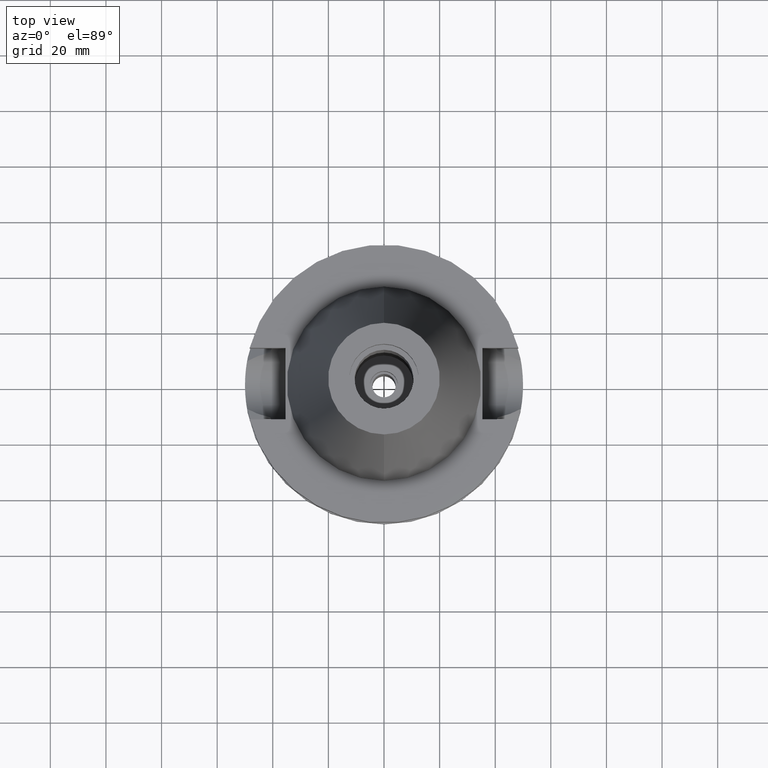
[diagram: clean part render]
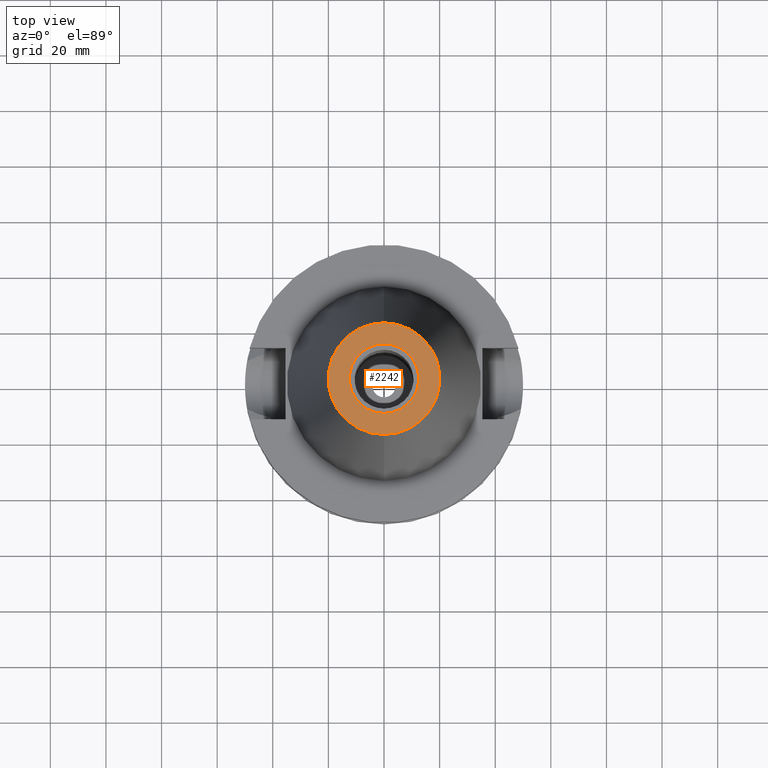
[diagram: same view with one face highlighted and labeled with its STEP entity id]
A machine part, top view. The second image highlights one B-rep face of the part: STEP entity #2242.
In plain terms, the highlighted planar face has unit normal (0, 0, -1).
Its self-contained STEP definition (entity closure, byte-faithful):
#3 = DIRECTION ( 'NONE',  ( 0.0000000000000000000, 0.0000000000000000000, 1.000000000000000000 ) ) ;
#9 = DIRECTION ( 'NONE',  ( 0.0000000000000000000, 0.0000000000000000000, -1.000000000000000000 ) ) ;
#23 = DIRECTION ( 'NONE',  ( 0.0000000000000000000, -1.000000000000000000, 0.0000000000000000000 ) ) ;
#128 = AXIS2_PLACEMENT_3D ( 'NONE', #2295, #1829, #315 ) ;
#232 = CIRCLE ( 'NONE', #1662, 12.50000000000000000 ) ;
#315 = DIRECTION ( 'NONE',  ( 0.0000000000000000000, -1.000000000000000000, 0.0000000000000000000 ) ) ;
#531 = DIRECTION ( 'NONE',  ( 0.0000000000000000000, 0.0000000000000000000, 1.000000000000000000 ) ) ;
#546 = CIRCLE ( 'NONE', #2271, 20.07942971896000017 ) ;
#810 = FACE_OUTER_BOUND ( 'NONE', #1278, .T. ) ;
#931 = EDGE_CURVE ( 'NONE', #2784, #1736, #1451, .T. ) ;
#993 = DIRECTION ( 'NONE',  ( 0.0000000000000000000, 1.000000000000000000, 0.0000000000000000000 ) ) ;
#1145 = DIRECTION ( 'NONE',  ( 0.0000000000000000000, 0.0000000000000000000, -1.000000000000000000 ) ) ;
#1252 = EDGE_CURVE ( 'NONE', #3013, #2061, #232, .T. ) ;
#1278 = EDGE_LOOP ( 'NONE', ( #2354, #2583 ) ) ;
#1303 = CARTESIAN_POINT ( 'NONE',  ( 0.0000000000000000000, 20.07942971896000017, 101.7999999999999972 ) ) ;
#1330 = FACE_BOUND ( 'NONE', #2477, .T. ) ;
#1420 = CARTESIAN_POINT ( 'NONE',  ( 0.0000000000000000000, 2.601639660108999860E-14, 101.7999999999999972 ) ) ;
#1442 = CARTESIAN_POINT ( 'NONE',  ( 0.0000000000000000000, 12.50000000000000000, 101.7999999999999972 ) ) ;
#1451 = CIRCLE ( 'NONE', #3060, 20.07942971896000017 ) ;
#1496 = CARTESIAN_POINT ( 'NONE',  ( 0.0000000000000000000, 1.847992019912999597E-14, 101.7999999999999972 ) ) ;
#1606 = CIRCLE ( 'NONE', #2811, 12.50000000000000000 ) ;
#1662 = AXIS2_PLACEMENT_3D ( 'NONE', #1420, #531, #2392 ) ;
#1729 = ORIENTED_EDGE ( 'NONE', *, *, #2491, .F. ) ;
#1736 = VERTEX_POINT ( 'NONE', #1303 ) ;
#1829 = DIRECTION ( 'NONE',  ( 0.0000000000000000000, 0.0000000000000000000, -1.000000000000000000 ) ) ;
#2061 = VERTEX_POINT ( 'NONE', #1442 ) ;
#2098 = DIRECTION ( 'NONE',  ( 0.0000000000000000000, 1.000000000000000000, 0.0000000000000000000 ) ) ;
#2242 = ADVANCED_FACE ( 'NONE', ( #810, #1330 ), #2760, .F. ) ;
#2271 = AXIS2_PLACEMENT_3D ( 'NONE', #2590, #1145, #2098 ) ;
#2295 = CARTESIAN_POINT ( 'NONE',  ( 0.0000000000000000000, 2.471337240678999545E-14, 101.7999999999999972 ) ) ;
#2354 = ORIENTED_EDGE ( 'NONE', *, *, #2944, .F. ) ;
#2392 = DIRECTION ( 'NONE',  ( 0.0000000000000000000, -1.000000000000000000, 0.0000000000000000000 ) ) ;
#2477 = EDGE_LOOP ( 'NONE', ( #1729, #2612 ) ) ;
#2491 = EDGE_CURVE ( 'NONE', #2061, #3013, #1606, .T. ) ;
#2577 = CARTESIAN_POINT ( 'NONE',  ( 0.0000000000000000000, -12.50000000000000000, 101.7999999999999972 ) ) ;
#2583 = ORIENTED_EDGE ( 'NONE', *, *, #931, .F. ) ;
#2590 = CARTESIAN_POINT ( 'NONE',  ( 0.0000000000000000000, 1.847992019912999597E-14, 101.7999999999999972 ) ) ;
#2612 = ORIENTED_EDGE ( 'NONE', *, *, #1252, .F. ) ;
#2660 = CARTESIAN_POINT ( 'NONE',  ( 0.0000000000000000000, 2.601639660108999860E-14, 101.7999999999999972 ) ) ;
#2760 = PLANE ( 'NONE',  #128 ) ;
#2784 = VERTEX_POINT ( 'NONE', #3020 ) ;
#2811 = AXIS2_PLACEMENT_3D ( 'NONE', #2660, #3, #993 ) ;
#2944 = EDGE_CURVE ( 'NONE', #1736, #2784, #546, .T. ) ;
#3013 = VERTEX_POINT ( 'NONE', #2577 ) ;
#3020 = CARTESIAN_POINT ( 'NONE',  ( 0.0000000000000000000, -20.07942971896000017, 101.7999999999999972 ) ) ;
#3060 = AXIS2_PLACEMENT_3D ( 'NONE', #1496, #9, #23 ) ;